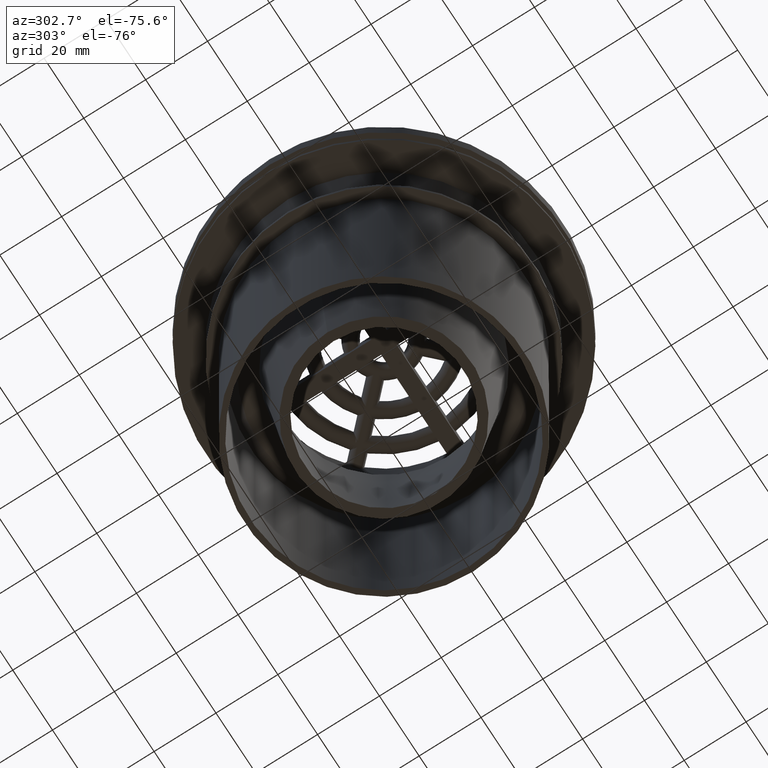
[diagram: clean part render]
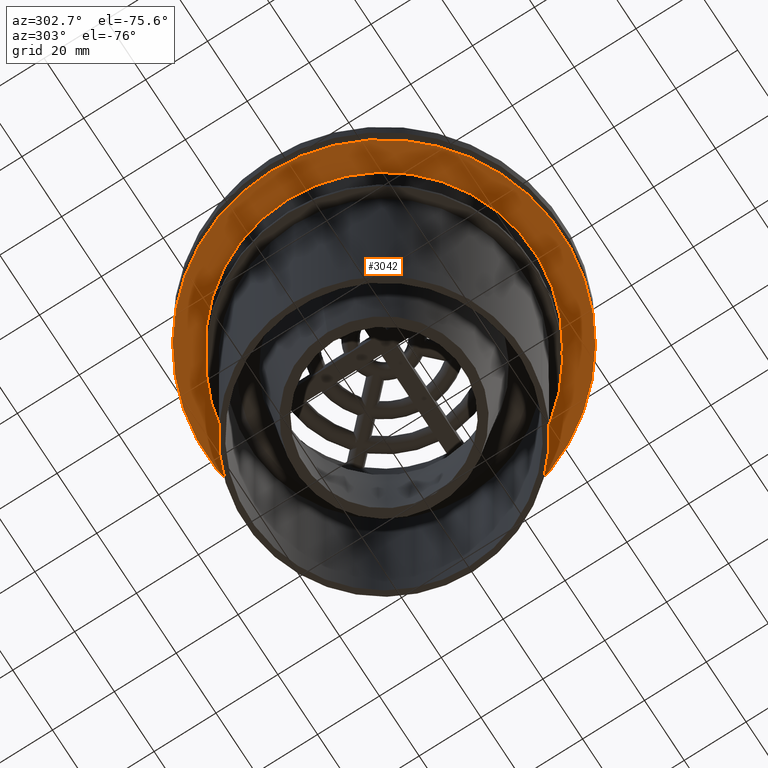
[diagram: same view with one face highlighted and labeled with its STEP entity id]
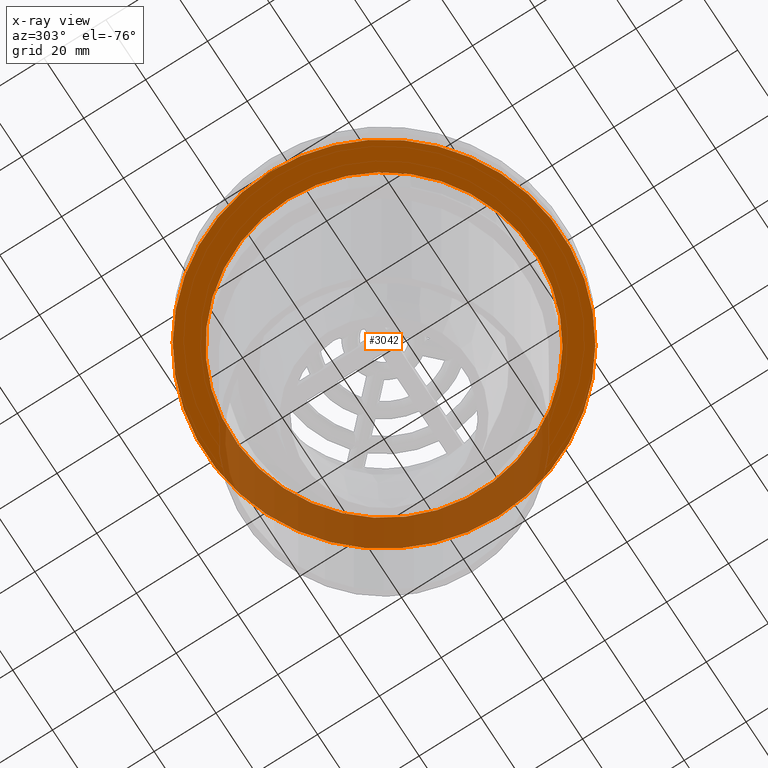
[diagram: x-ray of the same camera — body ghosted, the highlighted face saturated]
A machine part, auxiliary view. The second image highlights one B-rep face of the part: STEP entity #3042.
The next image is the same camera in x-ray: the body ghosted, the highlighted face saturated — about 31% of this face is hidden behind the body in this view.
In plain terms, the highlighted conical surface has half-angle 83.62 deg.
Its self-contained STEP definition (entity closure, byte-faithful):
#25=CONICAL_SURFACE('',#3391,48.556,1.45945195543957);
#1473=ORIENTED_EDGE('',*,*,#1918,.T.);
#1474=ORIENTED_EDGE('',*,*,#1917,.F.);
#1917=EDGE_CURVE('',#2219,#2219,#2389,.T.);
#1918=EDGE_CURVE('',#2220,#2220,#2390,.T.);
#2219=VERTEX_POINT('',#5488);
#2220=VERTEX_POINT('',#5491);
#2389=CIRCLE('',#3390,48.556);
#2390=CIRCLE('',#3392,57.5);
#2615=EDGE_LOOP('',(#1473));
#2616=EDGE_LOOP('',(#1474));
#2845=FACE_BOUND('',#2615,.T.);
#2846=FACE_BOUND('',#2616,.T.);
#3042=ADVANCED_FACE('',(#2845,#2846),#25,.T.);
#3390=AXIS2_PLACEMENT_3D('',#5487,#4217,#4218);
#3391=AXIS2_PLACEMENT_3D('',#5489,#4219,#4220);
#3392=AXIS2_PLACEMENT_3D('',#5490,#4221,#4222);
#4217=DIRECTION('',(0.,0.,-1.));
#4218=DIRECTION('',(-1.,0.,0.));
#4219=DIRECTION('',(0.,0.,1.));
#4220=DIRECTION('',(1.,0.,0.));
#4221=DIRECTION('',(0.,0.,-1.));
#4222=DIRECTION('',(-1.,0.,0.));
#5487=CARTESIAN_POINT('',(0.,0.,-15.));
#5488=CARTESIAN_POINT('',(-48.556,0.,-15.));
#5489=CARTESIAN_POINT('',(0.,0.,-15.));
#5490=CARTESIAN_POINT('',(0.,0.,-14.));
#5491=CARTESIAN_POINT('',(-57.5,0.,-14.));